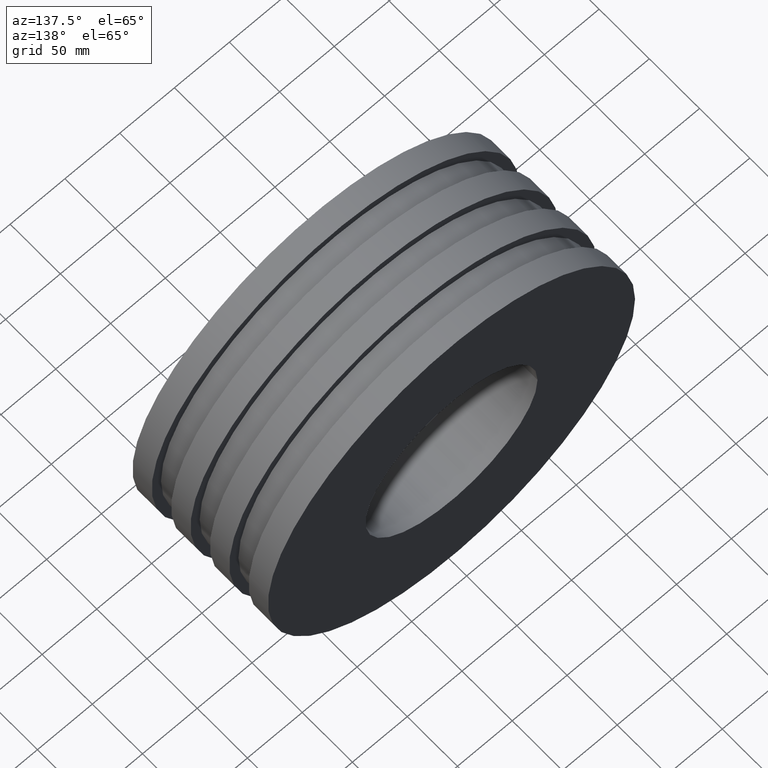
[diagram: clean part render]
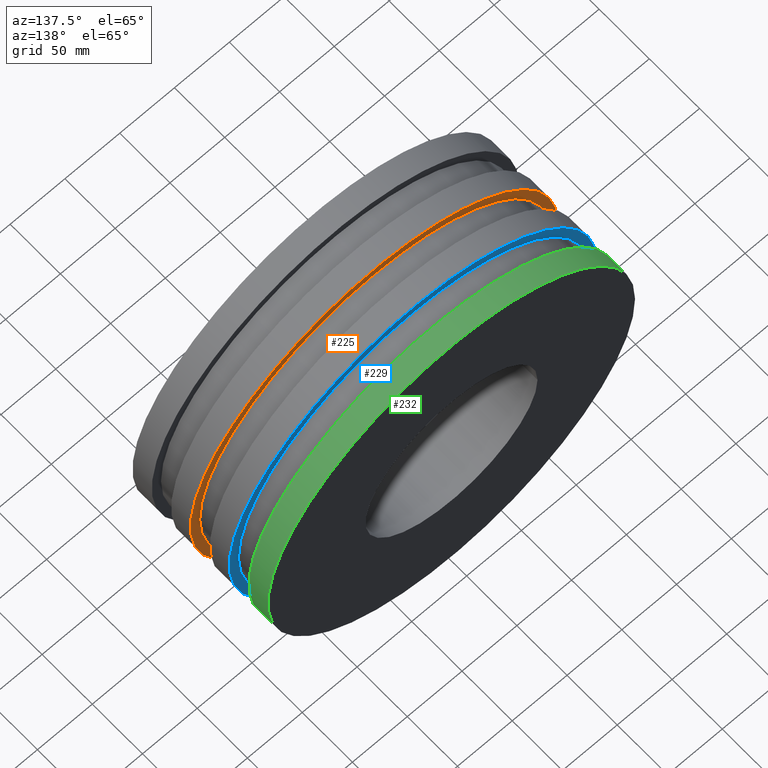
[diagram: same view with three faces highlighted in distinct colors, each labeled with its STEP entity id]
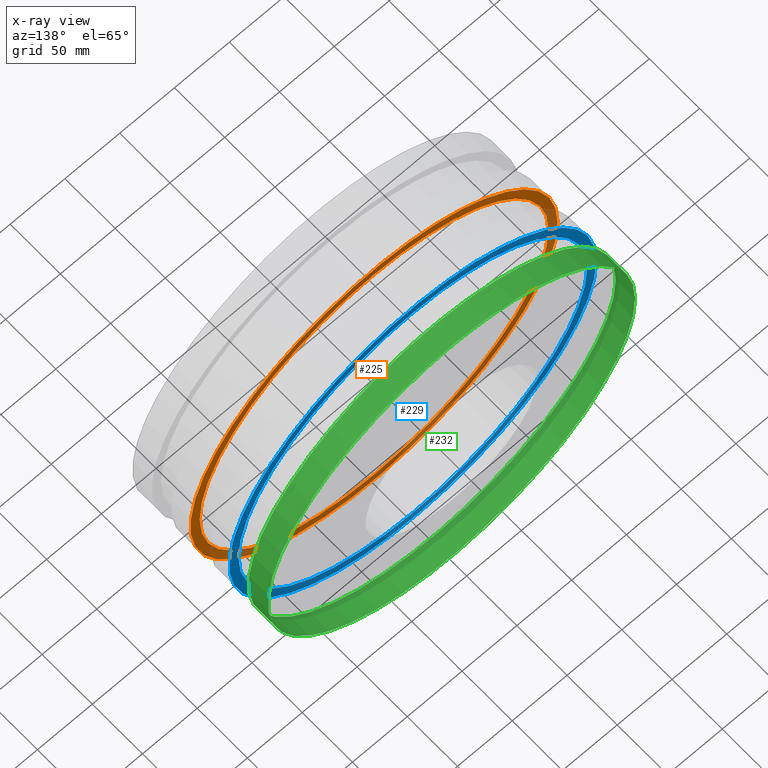
[diagram: x-ray of the same camera — body ghosted, the three highlighted faces saturated]
A machine part, auxiliary view with three faces highlighted in distinct colors.
The next image is the same camera in x-ray (body ghosted, the three faces saturated) — at least one of them is partly hidden behind the body in this view.
Their STEP definitions:

[orange] entity #225 — the highlighted planar face has unit normal (0, 1, 0).
#35=FACE_BOUND('',#86,.T.);
#55=FACE_OUTER_BOUND('',#85,.T.);
#85=EDGE_LOOP('',(#185));
#86=EDGE_LOOP('',(#186));
#115=CIRCLE('',#257,167.5);
#116=CIRCLE('',#259,159.125);
#135=VERTEX_POINT('',#390);
#136=VERTEX_POINT('',#393);
#155=EDGE_CURVE('',#135,#135,#115,.T.);
#156=EDGE_CURVE('',#136,#136,#116,.T.);
#185=ORIENTED_EDGE('',*,*,#155,.T.);
#186=ORIENTED_EDGE('',*,*,#156,.F.);
#210=PLANE('',#258);
#225=ADVANCED_FACE('',(#55,#35),#210,.T.);
#257=AXIS2_PLACEMENT_3D('',#391,#319,#320);
#258=AXIS2_PLACEMENT_3D('',#392,#321,#322);
#259=AXIS2_PLACEMENT_3D('',#394,#323,#324);
#319=DIRECTION('center_axis',(0.,1.,0.));
#320=DIRECTION('ref_axis',(1.,0.,0.));
#321=DIRECTION('center_axis',(0.,1.,0.));
#322=DIRECTION('ref_axis',(0.,0.,1.));
#323=DIRECTION('center_axis',(0.,1.,0.));
#324=DIRECTION('ref_axis',(1.,0.,0.));
#390=CARTESIAN_POINT('',(-167.5,57.8571428571429,0.));
#391=CARTESIAN_POINT('Origin',(0.,57.8571428571429,0.));
#392=CARTESIAN_POINT('Origin',(-159.125,57.8571428571429,0.));
#393=CARTESIAN_POINT('',(-159.125,57.8571428571429,0.));
#394=CARTESIAN_POINT('Origin',(0.,57.8571428571429,0.));

[blue] entity #229 — the highlighted planar face has unit normal (0, 1, 0).
#39=FACE_BOUND('',#94,.T.);
#59=FACE_OUTER_BOUND('',#93,.T.);
#93=EDGE_LOOP('',(#193));
#94=EDGE_LOOP('',(#194));
#119=CIRCLE('',#265,167.5);
#120=CIRCLE('',#267,159.125);
#139=VERTEX_POINT('',#402);
#140=VERTEX_POINT('',#405);
#159=EDGE_CURVE('',#139,#139,#119,.T.);
#160=EDGE_CURVE('',#140,#140,#120,.T.);
#193=ORIENTED_EDGE('',*,*,#159,.T.);
#194=ORIENTED_EDGE('',*,*,#160,.F.);
#212=PLANE('',#266);
#229=ADVANCED_FACE('',(#59,#39),#212,.T.);
#265=AXIS2_PLACEMENT_3D('',#403,#335,#336);
#266=AXIS2_PLACEMENT_3D('',#404,#337,#338);
#267=AXIS2_PLACEMENT_3D('',#406,#339,#340);
#335=DIRECTION('center_axis',(0.,1.,0.));
#336=DIRECTION('ref_axis',(1.,0.,0.));
#337=DIRECTION('center_axis',(0.,1.,0.));
#338=DIRECTION('ref_axis',(0.,0.,1.));
#339=DIRECTION('center_axis',(0.,1.,0.));
#340=DIRECTION('ref_axis',(1.,0.,0.));
#402=CARTESIAN_POINT('',(-167.5,96.4285714285714,0.));
#403=CARTESIAN_POINT('Origin',(0.,96.4285714285714,0.));
#404=CARTESIAN_POINT('Origin',(-159.125,96.4285714285714,0.));
#405=CARTESIAN_POINT('',(-159.125,96.4285714285714,0.));
#406=CARTESIAN_POINT('Origin',(0.,96.4285714285714,0.));

[green] entity #232 — the highlighted cylindrical surface (bore or boss wall) has radius 167.5 mm, axis along (0, 1, 0).
#23=CYLINDRICAL_SURFACE('',#272,167.5);
#42=FACE_BOUND('',#100,.T.);
#62=FACE_OUTER_BOUND('',#99,.T.);
#99=EDGE_LOOP('',(#199));
#100=EDGE_LOOP('',(#200));
#122=CIRCLE('',#271,167.5);
#123=CIRCLE('',#273,167.5);
#142=VERTEX_POINT('',#411);
#143=VERTEX_POINT('',#414);
#162=EDGE_CURVE('',#142,#142,#122,.T.);
#163=EDGE_CURVE('',#143,#143,#123,.T.);
#199=ORIENTED_EDGE('',*,*,#162,.T.);
#200=ORIENTED_EDGE('',*,*,#163,.F.);
#232=ADVANCED_FACE('',(#62,#42),#23,.T.);
#271=AXIS2_PLACEMENT_3D('',#412,#347,#348);
#272=AXIS2_PLACEMENT_3D('',#413,#349,#350);
#273=AXIS2_PLACEMENT_3D('',#415,#351,#352);
#347=DIRECTION('center_axis',(0.,1.,0.));
#348=DIRECTION('ref_axis',(1.,0.,0.));
#349=DIRECTION('center_axis',(0.,1.,0.));
#350=DIRECTION('ref_axis',(-1.,0.,0.));
#351=DIRECTION('center_axis',(0.,1.,0.));
#352=DIRECTION('ref_axis',(1.,0.,0.));
#411=CARTESIAN_POINT('',(-167.5,115.714285714286,0.));
#412=CARTESIAN_POINT('Origin',(0.,115.714285714286,0.));
#413=CARTESIAN_POINT('Origin',(0.,125.357142857143,0.));
#414=CARTESIAN_POINT('',(-167.5,135.,0.));
#415=CARTESIAN_POINT('Origin',(0.,135.,0.));